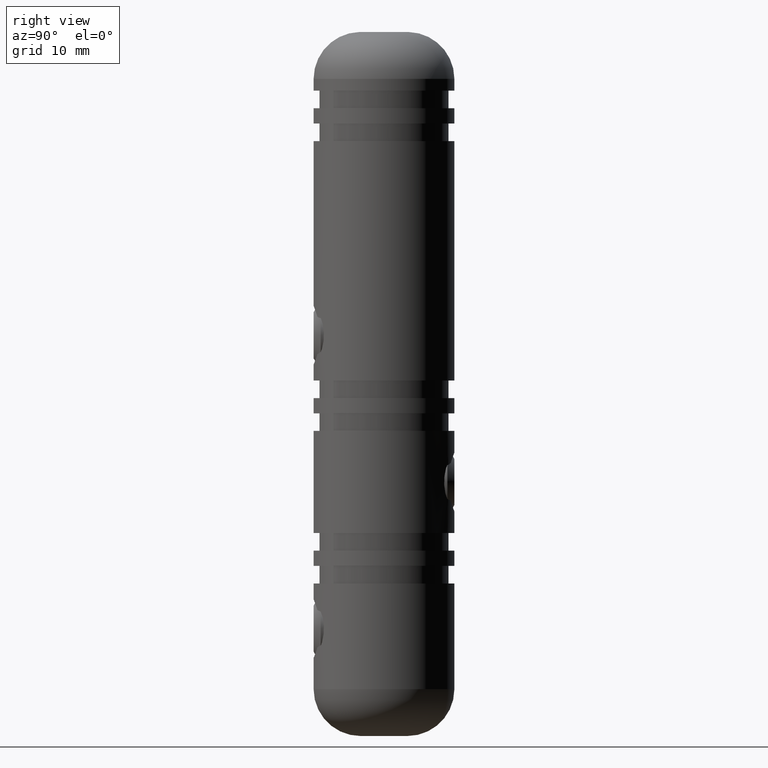
[diagram: clean part render]
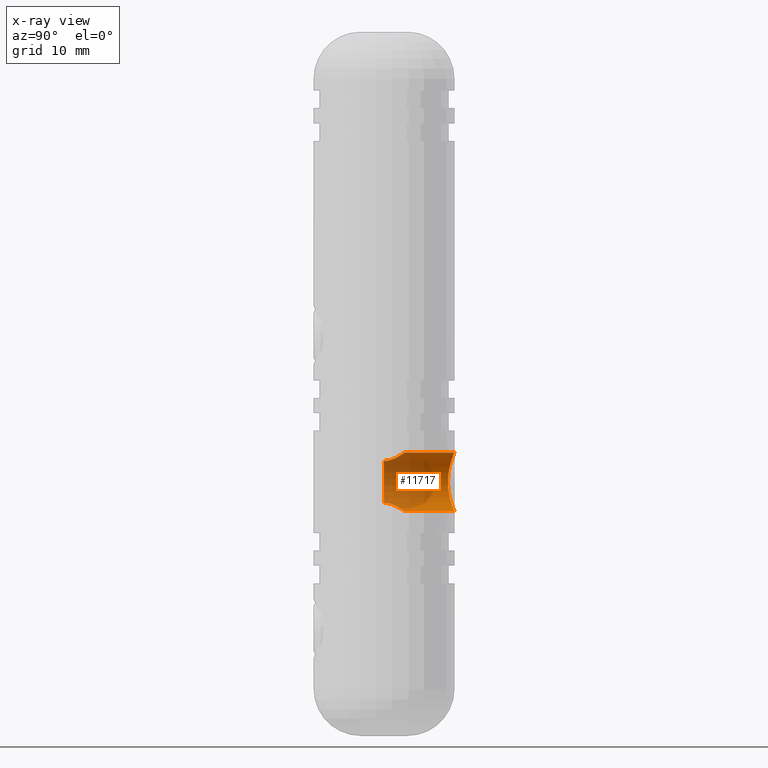
[diagram: x-ray — body ghosted, one internal face saturated and labeled with its STEP entity id]
A machine part, right view, then the same camera in x-ray: the body is ghosted and one INTERNAL B-rep face — a face not visible from any outside direction — is saturated and labeled: STEP entity #11717.
In plain terms, the highlighted cylindrical surface (edge-blend (fillet) strip) has radius 2.5 mm, axis along (0, 1, 0).
Its self-contained STEP definition (entity closure, byte-faithful):
#131 = DIRECTION ( 'NONE',  ( -0.0000000000000000000, 1.000000000000000000, 6.123233995736768500E-017 ) ) ;
#265 = CARTESIAN_POINT ( 'NONE',  ( -1.263692248699750800E-015, 1.750000000000014200, -5.849999999999992500 ) ) ;
#342 = CARTESIAN_POINT ( 'NONE',  ( -1.655142058905327600, 5.768422958052116900, -6.469449569317736100 ) ) ;
#387 = CARTESIAN_POINT ( 'NONE',  ( -0.4751530199904400700, 1.699874621467687200, -10.81426190203002100 ) ) ;
#407 = CARTESIAN_POINT ( 'NONE',  ( 0.0000000000000000000, 5.999999999999982200, -5.850000000000005000 ) ) ;
#529 = CARTESIAN_POINT ( 'NONE',  ( -2.483561809314555300, 5.461976513600083300, -8.019621045319118100 ) ) ;
#633 = CARTESIAN_POINT ( 'NONE',  ( -0.8933122050095248000, 1.508994324514063300, -10.68712518525988600 ) ) ;
#653 = CARTESIAN_POINT ( 'NONE',  ( -1.528475880810602700, 5.803710641115036300, -10.33500441104207800 ) ) ;
#721 = CARTESIAN_POINT ( 'NONE',  ( -0.4778602597154925600, 1.699115770143908600, -5.886268888860106700 ) ) ;
#773 = CARTESIAN_POINT ( 'NONE',  ( -1.652909006526311900, 5.769071837164840800, -10.23254878103047900 ) ) ;
#1063 = CARTESIAN_POINT ( 'NONE',  ( -1.750000000000000000, -3.360125358624177800E-015, -10.13535710713571400 ) ) ;
#1724 = CARTESIAN_POINT ( 'NONE',  ( 1.263692300398539000E-015, 1.750000000000014700, -10.85000000000001600 ) ) ;
#1745 = CARTESIAN_POINT ( 'NONE',  ( -1.996726160520223800, 5.663027394641067000, -6.811512018285261800 ) ) ;
#1808 = CARTESIAN_POINT ( 'NONE',  ( -1.528829007836515200, 5.803619680562195300, -6.365258295589699200 ) ) ;
#1918 = CARTESIAN_POINT ( 'NONE',  ( -2.418590853962363500, 5.491054996713684100, -7.696052146183329300 ) ) ;
#1935 = VECTOR ( 'NONE', #131, 1000.000000000000000 ) ;
#2101 = CARTESIAN_POINT ( 'NONE',  ( -2.418593444814171300, 5.491053255503485900, -9.003795991876113900 ) ) ;
#2165 = CARTESIAN_POINT ( 'NONE',  ( -1.750000000000000700, 0.1206177755004077700, -6.564642892864293700 ) ) ;
#3138 = CARTESIAN_POINT ( 'NONE',  ( -2.181708341974952800, 5.590935308825280900, -7.086746876611120300 ) ) ;
#3310 = CARTESIAN_POINT ( 'NONE',  ( -0.6621311939231077100, 5.971116335839146100, -10.78260272902402100 ) ) ;
#4013 = CARTESIAN_POINT ( 'NONE',  ( 3.061616997868382200E-016, 7.999999999999983100, -10.85000000000000100 ) ) ;
#4437 = CARTESIAN_POINT ( 'NONE',  ( -0.8134068127896109100, 5.946577916524679700, -5.980364398952573900 ) ) ;
#4488 = ORIENTED_EDGE ( 'NONE', *, *, #16222, .F. ) ;
#4650 = CARTESIAN_POINT ( 'NONE',  ( -1.737394277647406500, 0.2402220245135645300, -10.14792329851326100 ) ) ;
#4668 = CARTESIAN_POINT ( 'NONE',  ( -1.258252906115198400, 5.868227615580731400, -10.51639808306989300 ) ) ;
#4739 = CARTESIAN_POINT ( 'NONE',  ( -1.263692248699750800E-015, 1.750000000000014200, -5.849999999999992500 ) ) ;
#4904 = CARTESIAN_POINT ( 'NONE',  ( -0.3294735782554632000, 5.999999999999984900, -10.85000000000000500 ) ) ;
#4910 = CARTESIAN_POINT ( 'NONE',  ( -1.077806180778337900, 1.383219535718784400, -6.092034216197058400 ) ) ;
#5105 = LINE ( 'NONE', #4013, #11924 ) ;
#5235 = CARTESIAN_POINT ( 'NONE',  ( 7.347777944934527700E-016, 5.999999999999983100, -10.85000000000000100 ) ) ;
#5372 = AXIS2_PLACEMENT_3D ( 'NONE', #8460, #8585, #14009 ) ;
#5381 = DIRECTION ( 'NONE',  ( -0.0000000000000000000, 1.000000000000000000, 6.123233995736768500E-017 ) ) ;
#5869 = B_SPLINE_CURVE_WITH_KNOTS ( 'NONE', 3,
 ( #1724, #11261, #387, #12812, #633, #7310, #11494, #10004, #7435, #14252, #11559, #4650, #11614, #7503 ),
 .UNSPECIFIED., .F., .F.,
 ( 4, 2, 2, 2, 2, 2, 4 ),
 ( 0.002840118338443930000, 0.003548373137611624400, 0.003902500537195471000, 0.004256627936779318000, 0.004964882735947008500, 0.005319010135530852900, 0.005673137535114699100 ),
 .UNSPECIFIED. ) ;
#6080 = CARTESIAN_POINT ( 'NONE',  ( -2.370510600221100700, 5.512296490036563400, -9.161080357092439300 ) ) ;
#6106 = DIRECTION ( 'NONE',  ( -0.0000000000000000000, 1.000000000000000000, 6.123233995736768500E-017 ) ) ;
#6165 = CARTESIAN_POINT ( 'NONE',  ( 1.263692300398539000E-015, 1.750000000000014700, -10.85000000000001600 ) ) ;
#6219 = DIRECTION ( 'NONE',  ( 0.0000000000000000000, 0.0000000000000000000, 1.000000000000000000 ) ) ;
#6414 = VERTEX_POINT ( 'NONE', #1063 ) ;
#6974 = CIRCLE ( 'NONE', #5372, 2.499999999999998700 ) ;
#7310 = CARTESIAN_POINT ( 'NONE',  ( -1.078573956918487300, 1.382660040100902800, -10.60761800281895300 ) ) ;
#7330 = CARTESIAN_POINT ( 'NONE',  ( -2.166361182966828100, 5.596081245774388300, -9.608215165936130100 ) ) ;
#7435 = CARTESIAN_POINT ( 'NONE',  ( -1.522251625728684000, 0.8926772576124772900, -10.33650892092483400 ) ) ;
#7503 = CARTESIAN_POINT ( 'NONE',  ( -1.750000000000000000, -3.360125358624177800E-015, -10.13535710713571400 ) ) ;
#7523 = CARTESIAN_POINT ( 'NONE',  ( -1.523423860092144400, 0.8904022321670679300, -6.364433525336632000 ) ) ;
#7745 = CARTESIAN_POINT ( 'NONE',  ( 0.0000000000000000000, 5.999999999999982200, -5.850000000000005000 ) ) ;
#8048 = CARTESIAN_POINT ( 'NONE',  ( -1.750000000000000000, -3.578768545283051000E-015, -6.564642892864291900 ) ) ;
#8314 = ORIENTED_EDGE ( 'NONE', *, *, #15397, .F. ) ;
#8460 = CARTESIAN_POINT ( 'NONE',  ( 0.0000000000000000000, -3.469446951953614200E-015, -8.350000000000003200 ) ) ;
#8544 = CARTESIAN_POINT ( 'NONE',  ( -1.258442380232151600, 5.868189014291108000, -6.183703495810528100 ) ) ;
#8565 = ORIENTED_EDGE ( 'NONE', *, *, #12612, .F. ) ;
#8585 = DIRECTION ( 'NONE',  ( -0.0000000000000000000, 1.000000000000000000, 6.123233995736768500E-017 ) ) ;
#8712 = VERTEX_POINT ( 'NONE', #7745 ) ;
#8785 = CARTESIAN_POINT ( 'NONE',  ( -1.985928082928957600, 5.662626222328946700, -9.877192138629336400 ) ) ;
#8841 = VERTEX_POINT ( 'NONE', #265 ) ;
#8848 = CARTESIAN_POINT ( 'NONE',  ( -2.483395613810239300, 5.462051476449262000, -8.681345251360891500 ) ) ;
#8994 = CYLINDRICAL_SURFACE ( 'NONE', #13172, 2.499999999999998700 ) ;
#9026 = CARTESIAN_POINT ( 'NONE',  ( -0.2390878918852091500, 1.749999999999997300, -5.850000000000004100 ) ) ;
#9470 = CARTESIAN_POINT ( 'NONE',  ( 0.0000000000000000000, 7.999999999999983100, -5.850000000000004100 ) ) ;
#9483 = VERTEX_POINT ( 'NONE', #6165 ) ;
#9523 = VERTEX_POINT ( 'NONE', #5235 ) ;
#9844 = FACE_OUTER_BOUND ( 'NONE', #13238, .T. ) ;
#10004 = CARTESIAN_POINT ( 'NONE',  ( -1.398466355529550900, 1.075243847858336400, -10.43010031601403900 ) ) ;
#10087 = CARTESIAN_POINT ( 'NONE',  ( -1.112789484202401800, 5.897869239595871200, -10.59459194568942700 ) ) ;
#10150 = CARTESIAN_POINT ( 'NONE',  ( -1.655645375706977800, 0.5780332931904829100, -6.475923691361162900 ) ) ;
#10256 = CARTESIAN_POINT ( 'NONE',  ( -2.499892161112044200, 5.454405485178513800, -8.183124959841537200 ) ) ;
#10326 = CARTESIAN_POINT ( 'NONE',  ( -1.750000000000000000, -3.578768545283051000E-015, -6.564642892864291900 ) ) ;
#11261 = CARTESIAN_POINT ( 'NONE',  ( -0.2384902693080847000, 1.749999999999999100, -10.85000000000000700 ) ) ;
#11396 = ORIENTED_EDGE ( 'NONE', *, *, #15251, .T. ) ;
#11494 = CARTESIAN_POINT ( 'NONE',  ( -1.163686177268932900, 1.311744582916029900, -10.56448997489054000 ) ) ;
#11559 = CARTESIAN_POINT ( 'NONE',  ( -1.689824471001490000, 0.4698284306721796100, -10.19270462107829400 ) ) ;
#11614 = CARTESIAN_POINT ( 'NONE',  ( -1.750000000000000000, 0.1204229113005613600, -10.13535710713571100 ) ) ;
#11631 = VERTEX_POINT ( 'NONE', #8048 ) ;
#11717 = ADVANCED_FACE ( 'NONE', ( #9844 ), #8994, .F. ) ;
#11924 = VECTOR ( 'NONE', #5381, 1000.000000000000000 ) ;
#12591 = CARTESIAN_POINT ( 'NONE',  ( -0.6535671553393455100, 5.966488535110078900, -5.931352177383445200 ) ) ;
#12612 = EDGE_CURVE ( 'NONE', #8841, #8712, #13684, .T. ) ;
#12648 = CARTESIAN_POINT ( 'NONE',  ( -2.369582593462937300, 5.512683608006663700, -7.536677635524411800 ) ) ;
#12710 = CARTESIAN_POINT ( 'NONE',  ( -0.3313286651165028300, 5.993025678387380300, -5.866609448343197600 ) ) ;
#12812 = CARTESIAN_POINT ( 'NONE',  ( -0.7923229728204382900, 1.564587912845070200, -10.72367090922302600 ) ) ;
#12896 = CARTESIAN_POINT ( 'NONE',  ( -1.397813357687552700, 1.075834247423542900, -6.269551130761685800 ) ) ;
#12948 = CARTESIAN_POINT ( 'NONE',  ( 7.347777944934527700E-016, 5.999999999999983100, -10.85000000000000100 ) ) ;
#13071 = CARTESIAN_POINT ( 'NONE',  ( -1.737686236941183200, 0.2378076278515264000, -6.552366583862551300 ) ) ;
#13172 = AXIS2_PLACEMENT_3D ( 'NONE', #16982, #6106, #6219 ) ;
#13238 = EDGE_LOOP ( 'NONE', ( #14468, #11396, #17452, #8565, #4488, #8314 ) ) ;
#13518 = B_SPLINE_CURVE_WITH_KNOTS ( 'NONE', 3,
 ( #10326, #2165, #13071, #17135, #10150, #7523, #12896, #15615, #4910, #15809, #17014, #721, #9026, #4739 ),
 .UNSPECIFIED., .F., .F.,
 ( 4, 2, 2, 2, 2, 2, 4 ),
 ( 0.0000000000000000000, 0.0003550147923054908100, 0.0007100295846109816300, 0.001420059169221963300, 0.001775073961527454700, 0.002130088753832946200, 0.002840118338443929100 ),
 .UNSPECIFIED. ) ;
#13684 = LINE ( 'NONE', #9470, #1935 ) ;
#14009 = DIRECTION ( 'NONE',  ( 0.0000000000000000000, -6.123233995736756200E-017, 1.000000000000000000 ) ) ;
#14252 = CARTESIAN_POINT ( 'NONE',  ( -1.655365632983493400, 0.5789389395352468900, -10.22433496135937700 ) ) ;
#14468 = ORIENTED_EDGE ( 'NONE', *, *, #15424, .F. ) ;
#14774 = EDGE_CURVE ( 'NONE', #8712, #9523, #16439, .T. ) ;
#15251 = EDGE_CURVE ( 'NONE', #9483, #9523, #5105, .T. ) ;
#15381 = CARTESIAN_POINT ( 'NONE',  ( -0.1672401054569761200, 5.999999999999982200, -5.850000000000005900 ) ) ;
#15397 = EDGE_CURVE ( 'NONE', #6414, #11631, #6974, .T. ) ;
#15424 = EDGE_CURVE ( 'NONE', #9483, #6414, #5869, .T. ) ;
#15549 = CARTESIAN_POINT ( 'NONE',  ( -1.881449780072504100, 5.698635342894776000, -10.00415985378689300 ) ) ;
#15615 = CARTESIAN_POINT ( 'NONE',  ( -1.164409720204927500, 1.311049343543963600, -6.135911604383542400 ) ) ;
#15682 = CARTESIAN_POINT ( 'NONE',  ( -2.243493183772679700, 5.565201832296431000, -9.465307215877011500 ) ) ;
#15809 = CARTESIAN_POINT ( 'NONE',  ( -0.8933093562312232100, 1.508960185487951500, -6.012891949819483300 ) ) ;
#16222 = EDGE_CURVE ( 'NONE', #11631, #8841, #13518, .T. ) ;
#16439 = B_SPLINE_CURVE_WITH_KNOTS ( 'NONE', 3,
 ( #407, #15381, #12710, #12591, #4437, #16670, #8544, #1808, #342, #1745, #3138, #12648, #1918, #529, #10256, #17009, #8848, #2101, #6080, #15682, #7330, #8785, #15549, #773, #653, #4668, #10087, #3310, #4904, #12948 ),
 .UNSPECIFIED., .F., .F.,
 ( 4, 2, 2, 2, 2, 2, 2, 2, 2, 2, 2, 2, 2, 2, 4 ),
 ( 0.0000000000000000000, 0.0004942134665145531900, 0.0009884269330291063800, 0.001482640399543659400, 0.001976853866058212800, 0.002965280799087320000, 0.003459494265601875200, 0.003953707732116433300, 0.004447921198630990600, 0.004942134665145548800, 0.005436348131660106100, 0.005930561598174662600, 0.006424775064689220800, 0.006918988531203778100, 0.007907415464232894400 ),
 .UNSPECIFIED. ) ;
#16670 = CARTESIAN_POINT ( 'NONE',  ( -1.115495851646002100, 5.897379805078870200, -6.106682695246944600 ) ) ;
#16982 = CARTESIAN_POINT ( 'NONE',  ( 0.0000000000000000000, 7.999999999999983100, -8.350000000000003200 ) ) ;
#17009 = CARTESIAN_POINT ( 'NONE',  ( -2.500106784638723000, 5.454307112671444600, -8.513628119896187800 ) ) ;
#17014 = CARTESIAN_POINT ( 'NONE',  ( -0.7948163104281619200, 1.563322820059608500, -5.977164694583535700 ) ) ;
#17135 = CARTESIAN_POINT ( 'NONE',  ( -1.690752890906943100, 0.4663266964360860400, -6.508154724533405000 ) ) ;
#17452 = ORIENTED_EDGE ( 'NONE', *, *, #14774, .F. ) ;